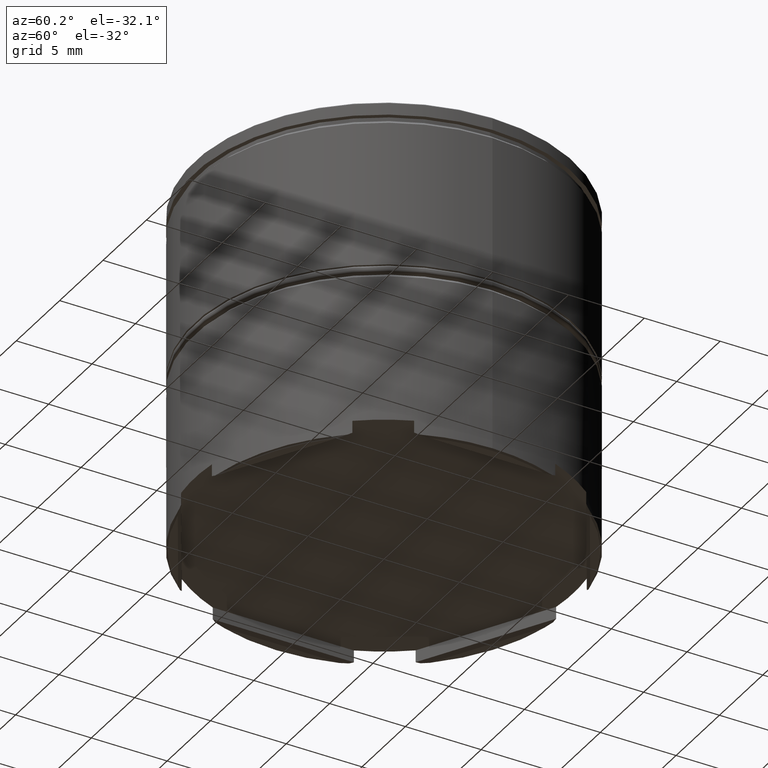
[diagram: clean part render]
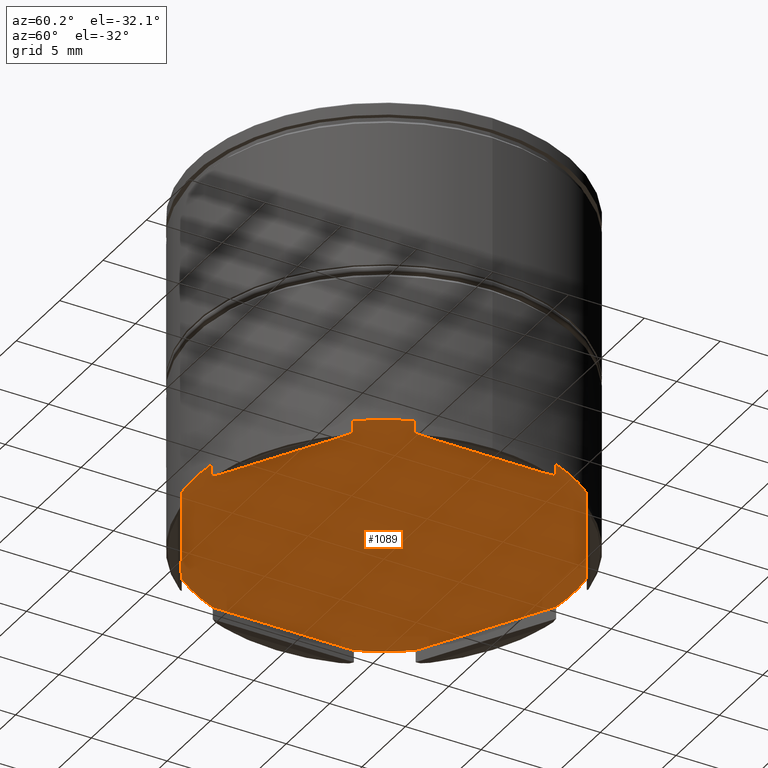
[diagram: same view with one face highlighted and labeled with its STEP entity id]
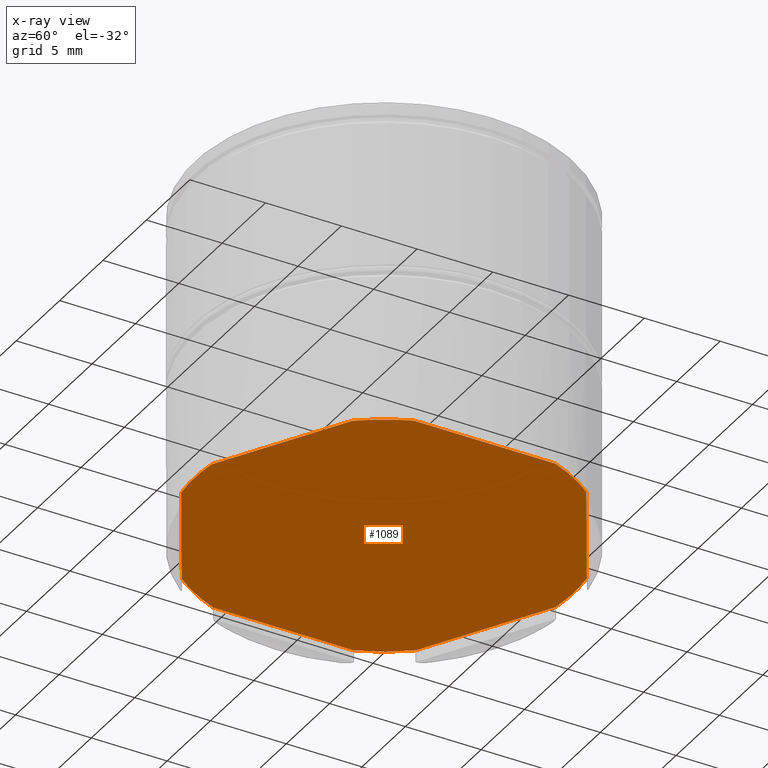
[diagram: x-ray of the same camera — body ghosted, the highlighted face saturated]
A machine part, auxiliary view. The second image highlights one B-rep face of the part: STEP entity #1089.
The next image is the same camera in x-ray: the body ghosted, the highlighted face saturated — about 0% of this face is hidden behind the body in this view.
In plain terms, the highlighted planar face has unit normal (0, 0, -1).
Its self-contained STEP definition (entity closure, byte-faithful):
#20 = VERTEX_POINT ( 'NONE', #1111 ) ;
#34 = DIRECTION ( 'NONE',  ( -0.000000000000000000, -0.000000000000000000, 1.000000000000000000 ) ) ;
#43 = DIRECTION ( 'NONE',  ( -0.000000000000000000, -0.000000000000000000, 1.000000000000000000 ) ) ;
#58 = DIRECTION ( 'NONE',  ( -0.000000000000000000, -0.000000000000000000, 1.000000000000000000 ) ) ;
#61 = ORIENTED_EDGE ( 'NONE', *, *, #245, .F. ) ;
#90 = CARTESIAN_POINT ( 'NONE',  ( 0.000000000000000000, 0.000000000000000000, -21.50000000000000000 ) ) ;
#91 = VERTEX_POINT ( 'NONE', #1211 ) ;
#168 = VECTOR ( 'NONE', #834, 1000.000000000000114 ) ;
#179 = CARTESIAN_POINT ( 'NONE',  ( 11.60000000000000497, -6.697263122599662388, -21.50000000000000000 ) ) ;
#192 = DIRECTION ( 'NONE',  ( -1.000000000000000000, 0.000000000000000000, 0.000000000000000000 ) ) ;
#228 = AXIS2_PLACEMENT_3D ( 'NONE', #1280, #43, #1399 ) ;
#245 = EDGE_CURVE ( 'NONE', #729, #1210, #1608, .T. ) ;
#246 = LINE ( 'NONE', #555, #821 ) ;
#256 = DIRECTION ( 'NONE',  ( 0.000000000000000000, -1.000000000000000000, 0.000000000000000000 ) ) ;
#288 = EDGE_CURVE ( 'NONE', #1323, #1610, #817, .T. ) ;
#302 = ORIENTED_EDGE ( 'NONE', *, *, #572, .T. ) ;
#418 = LINE ( 'NONE', #679, #1535 ) ;
#449 = CARTESIAN_POINT ( 'NONE',  ( 0.000000000000000000, 0.000000000000000000, -21.50000000000000000 ) ) ;
#475 = EDGE_CURVE ( 'NONE', #1553, #505, #642, .T. ) ;
#488 = CARTESIAN_POINT ( 'NONE',  ( -11.60000000000000497, -4.657252408878002292, -21.50000000000000000 ) ) ;
#505 = VERTEX_POINT ( 'NONE', #962 ) ;
#555 = CARTESIAN_POINT ( 'NONE',  ( -11.60000000000000675, 6.697263122599663276, -21.50000000000000000 ) ) ;
#564 = AXIS2_PLACEMENT_3D ( 'NONE', #791, #1040, #1180 ) ;
#572 = EDGE_CURVE ( 'NONE', #632, #91, #246, .T. ) ;
#591 = DIRECTION ( 'NONE',  ( 0.000000000000000000, 0.000000000000000000, -1.000000000000000000 ) ) ;
#613 = VECTOR ( 'NONE', #1275, 1000.000000000000227 ) ;
#616 = EDGE_CURVE ( 'NONE', #20, #1210, #975, .T. ) ;
#632 = VERTEX_POINT ( 'NONE', #1601 ) ;
#642 = CIRCLE ( 'NONE', #228, 12.50000000000000000 ) ;
#653 = CARTESIAN_POINT ( 'NONE',  ( 0.000000000000000000, 0.000000000000000000, -21.50000000000000000 ) ) ;
#661 = CARTESIAN_POINT ( 'NONE',  ( 0.000000000000000000, 0.000000000000000000, -21.50000000000000000 ) ) ;
#666 = ORIENTED_EDGE ( 'NONE', *, *, #475, .F. ) ;
#668 = VECTOR ( 'NONE', #1020, 1000.000000000000000 ) ;
#670 = DIRECTION ( 'NONE',  ( -1.000000000000000000, 6.217248937900877415E-15, 0.000000000000000000 ) ) ;
#672 = CARTESIAN_POINT ( 'NONE',  ( -1.732057020203453864E-15, -13.39452624519932300, -21.50000000000000000 ) ) ;
#679 = CARTESIAN_POINT ( 'NONE',  ( 0.000000000000000000, 13.39452624519932122, -21.50000000000000000 ) ) ;
#685 = CARTESIAN_POINT ( 'NONE',  ( -11.60000000000000497, 4.657252408877998739, -21.50000000000000000 ) ) ;
#726 = VERTEX_POINT ( 'NONE', #685 ) ;
#729 = VERTEX_POINT ( 'NONE', #1163 ) ;
#744 = VERTEX_POINT ( 'NONE', #927 ) ;
#755 = EDGE_CURVE ( 'NONE', #744, #807, #418, .T. ) ;
#780 = CARTESIAN_POINT ( 'NONE',  ( -1.766701102075380891, -12.37452088833849118, -21.50000000000000000 ) ) ;
#788 = AXIS2_PLACEMENT_3D ( 'NONE', #661, #34, #670 ) ;
#791 = CARTESIAN_POINT ( 'NONE',  ( 0.000000000000000000, 0.000000000000000000, -21.50000000000000000 ) ) ;
#805 = DIRECTION ( 'NONE',  ( 0.8660254037844388186, 0.4999999999999997224, 0.000000000000000000 ) ) ;
#807 = VERTEX_POINT ( 'NONE', #1148 ) ;
#810 = ORIENTED_EDGE ( 'NONE', *, *, #616, .T. ) ;
#817 = CIRCLE ( 'NONE', #1029, 12.50000000000000000 ) ;
#821 = VECTOR ( 'NONE', #805, 1000.000000000000000 ) ;
#822 = EDGE_CURVE ( 'NONE', #729, #1610, #912, .T. ) ;
#828 = PLANE ( 'NONE',  #1027 ) ;
#834 = DIRECTION ( 'NONE',  ( -0.8660254037844387076, -0.4999999999999998890, 0.000000000000000000 ) ) ;
#836 = EDGE_CURVE ( 'NONE', #632, #726, #1074, .T. ) ;
#845 = VECTOR ( 'NONE', #256, 1000.000000000000000 ) ;
#862 = CARTESIAN_POINT ( 'NONE',  ( 1.766701102075386220, -12.37452088833849295, -21.50000000000000000 ) ) ;
#894 = AXIS2_PLACEMENT_3D ( 'NONE', #1175, #58, #931 ) ;
#912 = LINE ( 'NONE', #179, #168 ) ;
#927 = CARTESIAN_POINT ( 'NONE',  ( 1.766701102075379337, 12.37452088833849295, -21.50000000000000000 ) ) ;
#931 = DIRECTION ( 'NONE',  ( -1.000000000000000000, 0.000000000000000000, 0.000000000000000000 ) ) ;
#962 = CARTESIAN_POINT ( 'NONE',  ( -9.833298897924624526, -7.717268479460486219, -21.50000000000000000 ) ) ;
#971 = ORIENTED_EDGE ( 'NONE', *, *, #822, .T. ) ;
#975 = LINE ( 'NONE', #1231, #845 ) ;
#991 = LINE ( 'NONE', #1496, #668 ) ;
#1020 = DIRECTION ( 'NONE',  ( -1.295098792014792022E-16, 1.000000000000000000, 0.000000000000000000 ) ) ;
#1027 = AXIS2_PLACEMENT_3D ( 'NONE', #90, #591, #1155 ) ;
#1028 = AXIS2_PLACEMENT_3D ( 'NONE', #653, #1522, #1392 ) ;
#1029 = AXIS2_PLACEMENT_3D ( 'NONE', #449, #1305, #192 ) ;
#1040 = DIRECTION ( 'NONE',  ( -0.000000000000000000, -0.000000000000000000, 1.000000000000000000 ) ) ;
#1045 = EDGE_CURVE ( 'NONE', #744, #91, #1258, .T. ) ;
#1074 = CIRCLE ( 'NONE', #788, 12.50000000000000000 ) ;
#1089 = ADVANCED_FACE ( 'NONE', ( #1325 ), #828, .T. ) ;
#1090 = ORIENTED_EDGE ( 'NONE', *, *, #836, .F. ) ;
#1111 = CARTESIAN_POINT ( 'NONE',  ( 11.60000000000000497, 4.657252408878000516, -21.50000000000000000 ) ) ;
#1136 = ORIENTED_EDGE ( 'NONE', *, *, #288, .F. ) ;
#1148 = CARTESIAN_POINT ( 'NONE',  ( 9.833298897924624526, 7.717268479460488884, -21.50000000000000000 ) ) ;
#1154 = EDGE_CURVE ( 'NONE', #1553, #726, #991, .T. ) ;
#1155 = DIRECTION ( 'NONE',  ( -1.000000000000000000, 0.000000000000000000, -0.000000000000000000 ) ) ;
#1163 = CARTESIAN_POINT ( 'NONE',  ( 9.833298897924617421, -7.717268479460498654, -21.50000000000000000 ) ) ;
#1175 = CARTESIAN_POINT ( 'NONE',  ( 0.000000000000000000, 0.000000000000000000, -21.50000000000000000 ) ) ;
#1180 = DIRECTION ( 'NONE',  ( -1.000000000000000000, 3.552713678800500929E-15, 0.000000000000000000 ) ) ;
#1181 = DIRECTION ( 'NONE',  ( 0.8660254037844385966, -0.5000000000000000000, 0.000000000000000000 ) ) ;
#1187 = ORIENTED_EDGE ( 'NONE', *, *, #1202, .F. ) ;
#1202 = EDGE_CURVE ( 'NONE', #20, #807, #1234, .T. ) ;
#1210 = VERTEX_POINT ( 'NONE', #1383 ) ;
#1211 = CARTESIAN_POINT ( 'NONE',  ( -1.766701102075377561, 12.37452088833849295, -21.50000000000000000 ) ) ;
#1227 = ORIENTED_EDGE ( 'NONE', *, *, #1154, .T. ) ;
#1231 = CARTESIAN_POINT ( 'NONE',  ( 11.60000000000000497, 6.697263122599659724, -21.50000000000000000 ) ) ;
#1234 = CIRCLE ( 'NONE', #1028, 12.50000000000000000 ) ;
#1258 = CIRCLE ( 'NONE', #564, 12.50000000000000000 ) ;
#1267 = EDGE_CURVE ( 'NONE', #1323, #505, #1284, .T. ) ;
#1268 = EDGE_LOOP ( 'NONE', ( #1227, #1090, #302, #1301, #1347, #1187, #810, #61, #971, #1136, #1485, #666 ) ) ;
#1275 = DIRECTION ( 'NONE',  ( -0.8660254037844384856, 0.5000000000000001110, 0.000000000000000000 ) ) ;
#1280 = CARTESIAN_POINT ( 'NONE',  ( 0.000000000000000000, 0.000000000000000000, -21.50000000000000000 ) ) ;
#1284 = LINE ( 'NONE', #672, #613 ) ;
#1301 = ORIENTED_EDGE ( 'NONE', *, *, #1045, .F. ) ;
#1305 = DIRECTION ( 'NONE',  ( -0.000000000000000000, -0.000000000000000000, 1.000000000000000000 ) ) ;
#1323 = VERTEX_POINT ( 'NONE', #780 ) ;
#1325 = FACE_OUTER_BOUND ( 'NONE', #1268, .T. ) ;
#1347 = ORIENTED_EDGE ( 'NONE', *, *, #755, .T. ) ;
#1383 = CARTESIAN_POINT ( 'NONE',  ( 11.60000000000000497, -4.657252408878000516, -21.50000000000000000 ) ) ;
#1392 = DIRECTION ( 'NONE',  ( -1.000000000000000000, 0.000000000000000000, 0.000000000000000000 ) ) ;
#1399 = DIRECTION ( 'NONE',  ( -1.000000000000000000, 0.000000000000000000, 0.000000000000000000 ) ) ;
#1485 = ORIENTED_EDGE ( 'NONE', *, *, #1267, .T. ) ;
#1496 = CARTESIAN_POINT ( 'NONE',  ( -11.60000000000000497, -6.697263122599659724, -21.50000000000000000 ) ) ;
#1522 = DIRECTION ( 'NONE',  ( -0.000000000000000000, -0.000000000000000000, 1.000000000000000000 ) ) ;
#1535 = VECTOR ( 'NONE', #1181, 1000.000000000000227 ) ;
#1553 = VERTEX_POINT ( 'NONE', #488 ) ;
#1601 = CARTESIAN_POINT ( 'NONE',  ( -9.833298897924620974, 7.717268479460495101, -21.50000000000000000 ) ) ;
#1608 = CIRCLE ( 'NONE', #894, 12.50000000000000000 ) ;
#1610 = VERTEX_POINT ( 'NONE', #862 ) ;